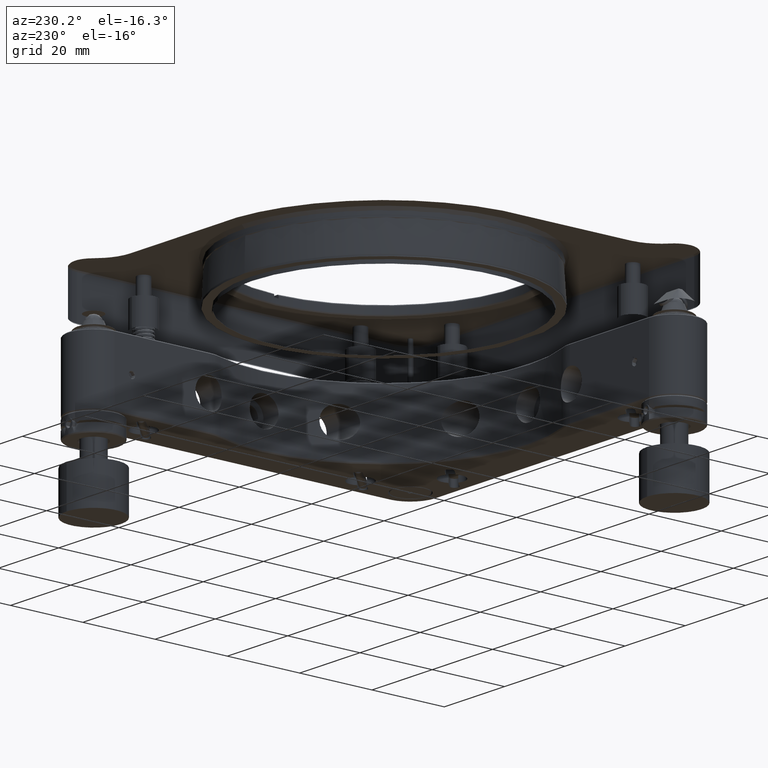
[diagram: clean part render]
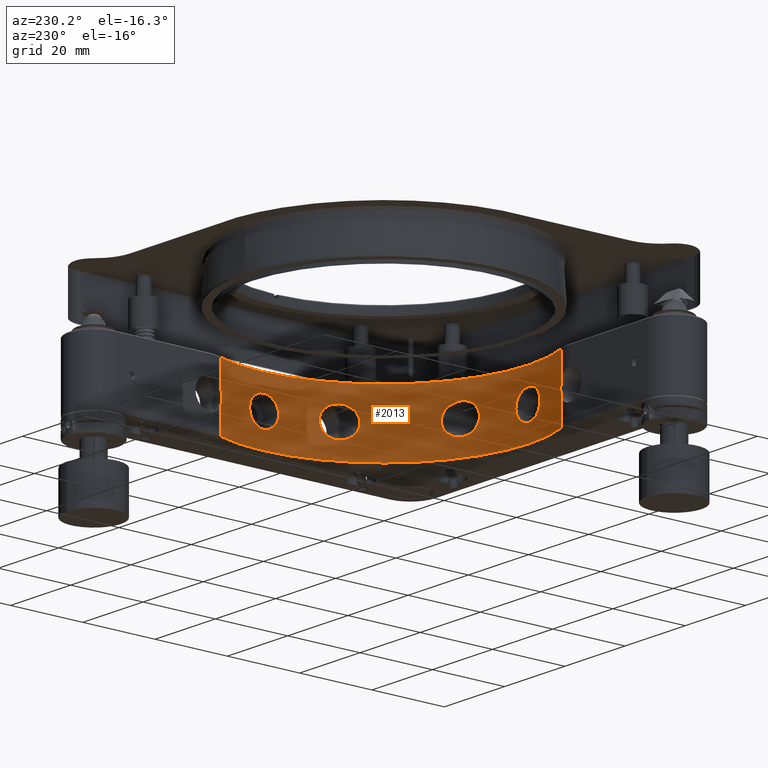
[diagram: same view with one face highlighted and labeled with its STEP entity id]
A machine part, auxiliary view. The second image highlights one B-rep face of the part: STEP entity #2013.
In plain terms, the highlighted cylindrical surface (partial cylindrical patch) has radius 40 mm, axis along (0, 0, 1).
Its self-contained STEP definition (entity closure, byte-faithful):
#19 = ORIENTED_EDGE ( 'NONE', *, *, #4626, .F. ) ;
#85 = CARTESIAN_POINT ( 'NONE',  ( 39.81973624974883563, -3.794555151462494891, -1.291970670427813772 ) ) ;
#108 = CARTESIAN_POINT ( 'NONE',  ( 34.12039577430473258, -20.87655359975871150, -2.159970961064502148 ) ) ;
#113 = CARTESIAN_POINT ( 'NONE',  ( 2.643779866513528365, -39.91297297625043683, -3.013327084978770554 ) ) ;
#258 = CIRCLE ( 'NONE', #5455, 40.00000000000000711 ) ;
#360 = CARTESIAN_POINT ( 'NONE',  ( 36.21088020550038067, -16.99549501406183438, -3.976095864953350212 ) ) ;
#395 = VERTEX_POINT ( 'NONE', #4796 ) ;
#461 = ORIENTED_EDGE ( 'NONE', *, *, #8875, .F. ) ;
#537 = LINE ( 'NONE', #4232, #7505 ) ;
#546 = EDGE_CURVE ( 'NONE', #13956, #12064, #10093, .T. ) ;
#575 = CARTESIAN_POINT ( 'NONE',  ( 37.43999999999999773, 14.07999999999999474, 2.074511990806470418 ) ) ;
#591 = CARTESIAN_POINT ( 'NONE',  ( 39.80211149448327745, 3.974235362776949554, -0.5233289608803896042 ) ) ;
#594 = CARTESIAN_POINT ( 'NONE',  ( 13.49563487544978990, -37.65458627938710379, -0.2027371142948291849 ) ) ;
#678 = CARTESIAN_POINT ( 'NONE',  ( 39.87349199812836531, -3.182091016693505026, 2.437654102006108658 ) ) ;
#697 = ORIENTED_EDGE ( 'NONE', *, *, #5062, .F. ) ;
#707 = DIRECTION ( 'NONE',  ( 0.000000000000000000, 0.000000000000000000, 1.000000000000000000 ) ) ;
#763 = CARTESIAN_POINT ( 'NONE',  ( 40.00000000000000000, 6.776263578034402713E-16, -3.999999999999994227 ) ) ;
#766 = CARTESIAN_POINT ( 'NONE',  ( 13.98237661210883331, -37.47676783253960764, 1.923929985853091607 ) ) ;
#809 = CARTESIAN_POINT ( 'NONE',  ( -3.999814172367130993, -39.79951616063990372, -0.2638454736327792149 ) ) ;
#846 = CARTESIAN_POINT ( 'NONE',  ( 39.99999992739900279, 0.2644192606446021387, 3.999999273989840010 ) ) ;
#868 = CARTESIAN_POINT ( 'NONE',  ( -13.56252369873147323, -37.63055476512877817, 0.7276294855478160351 ) ) ;
#890 = CARTESIAN_POINT ( 'NONE',  ( 2.438460131477095949, -39.92619803155862712, 3.181540281605568232 ) ) ;
#936 = CARTESIAN_POINT ( 'NONE',  ( 18.85775354456502839, -35.27680065668296550, 3.770728618600924786 ) ) ;
#981 = CARTESIAN_POINT ( 'NONE',  ( 37.51061960630837433, 13.89221604686188449, 1.764935028813254814 ) ) ;
#982 = CARTESIAN_POINT ( 'NONE',  ( 4.000183821660115768, -39.79947900949748885, -0.2581801784243560882 ) ) ;
#1064 = CARTESIAN_POINT ( 'NONE',  ( 36.97841389106583421, -15.25304808655003797, 3.319358962223633913 ) ) ;
#1068 = CARTESIAN_POINT ( 'NONE',  ( -1.041747499460663917, -39.98725425984980575, 3.870802633548977578 ) ) ;
#1100 = CARTESIAN_POINT ( 'NONE',  ( -14.07999999999999474, -37.43999999999999773, -8.750000000000010658 ) ) ;
#1144 = CARTESIAN_POINT ( 'NONE',  ( 34.30545935639871402, -20.57103197083863932, -2.575917583847042280 ) ) ;
#1177 = DIRECTION ( 'NONE',  ( 1.000000000000000000, 0.000000000000000000, 0.000000000000000000 ) ) ;
#1232 = CARTESIAN_POINT ( 'NONE',  ( 37.22513654046925780, -14.64020804572912660, 2.809525934883248866 ) ) ;
#1276 = CARTESIAN_POINT ( 'NONE',  ( 20.41183855940359848, -34.40064097931813336, -2.754414858204996985 ) ) ;
#1317 = CARTESIAN_POINT ( 'NONE',  ( 33.97964256284403461, -21.10445912458173012, 1.755126120527795708 ) ) ;
#1377 = CARTESIAN_POINT ( 'NONE',  ( 39.95037124450598753, -2.003800077714260386, -3.471753424719405068 ) ) ;
#1398 = CARTESIAN_POINT ( 'NONE',  ( 36.01233657734263716, -17.41233497111601025, 4.006874715714967117 ) ) ;
#1478 = CARTESIAN_POINT ( 'NONE',  ( 36.85713235445158631, -15.54374808690024778, -3.498757400069479218 ) ) ;
#1536 = B_SPLINE_CURVE_WITH_KNOTS ( 'NONE', 3,
 ( #1627, #15894, #4203, #2659, #14609, #2911, #1377, #8121, #7868, #13075, #6579, #6832, #2742, #85, #9487, #14694, #3172, #12470, #1960, #8377, #3339, #11110, #8538, #678, #5980, #10860, #13752, #12385, #5811, #7338, #7090, #5733, #15112, #846, #13836, #13590, #11193, #1882, #3083, #16399, #12303, #8461, #11028, #12551, #7007, #9825, #3427, #16067, #4375, #7169, #591, #16237, #16319, #4622, #9572, #5898, #4546, #2049, #9744, #15025, #14941, #1794, #3258, #7254, #14774, #763 ),
 .UNSPECIFIED., .T., .F.,
 ( 4, 2, 2, 2, 2, 2, 2, 2, 2, 2, 2, 2, 2, 2, 2, 2, 2, 2, 2, 2, 2, 2, 2, 2, 2, 2, 2, 2, 2, 2, 2, 2, 4 ),
 ( 0.000000000000000000, 0.0007819301302609063531, 0.001563860260521812489, 0.002345790390782718192, 0.003127720521043623678, 0.003909650651304529163, 0.004691580781565434649, 0.005473510911826341002, 0.006255441042087247355, 0.007037371172348154576, 0.007819301302609060061, 0.008601231432869968149, 0.009383161563130872768, 0.01016509169339177912, 0.01094702182365268547, 0.01172895195391359183, 0.01251088208417449818, 0.01329281221443540453, 0.01407474234469631262, 0.01485667247495721724, 0.01563860260521812359, 0.01642053273547902995, 0.01720246286573993630, 0.01798439299600084612, 0.01876632312626175247, 0.01954825325652266230, 0.02033018338678357212, 0.02111211351704448194, 0.02189404364730539176, 0.02267597377756630159, 0.02345790390782720794, 0.02423983403808811776, 0.02502176416834902412 ),
 .UNSPECIFIED. ) ;
#1627 = CARTESIAN_POINT ( 'NONE',  ( 40.00000000000000000, 6.776263578034402713E-16, -3.999999999999994227 ) ) ;
#1651 = DIRECTION ( 'NONE',  ( 0.000000000000000000, 0.000000000000000000, 1.000000000000000000 ) ) ;
#1704 = VERTEX_POINT ( 'NONE', #3170 ) ;
#1794 = CARTESIAN_POINT ( 'NONE',  ( 39.97989446881356912, 1.291031078043473723, -3.794993237898264482 ) ) ;
#1862 = CARTESIAN_POINT ( 'NONE',  ( 37.65296681763577169, 13.50015147527802206, -0.1855210066319131490 ) ) ;
#1882 = CARTESIAN_POINT ( 'NONE',  ( 39.96137064452024390, 1.774140766148539328, 3.594598306928420861 ) ) ;
#1960 = CARTESIAN_POINT ( 'NONE',  ( 39.80211150378906382, -3.974235271831175087, 0.5233298739115030962 ) ) ;
#1963 = CARTESIAN_POINT ( 'NONE',  ( 17.24905818533173374, -36.09082805755732437, -3.999999999999992450 ) ) ;
#2002 = VECTOR ( 'NONE', #11274, 1000.000000000000000 ) ;
#2013 = ADVANCED_FACE ( 'NONE', ( #11688, #15441, #13993, #5031, #4948 ), #2379, .F. ) ;
#2049 = CARTESIAN_POINT ( 'NONE',  ( 39.91297297625043683, 2.643779866513531918, -3.013327084978765669 ) ) ;
#2052 = CARTESIAN_POINT ( 'NONE',  ( 14.35184466892037847, -37.33699323100682221, -2.482276187145171065 ) ) ;
#2137 = CARTESIAN_POINT ( 'NONE',  ( 14.04742182256496363, -37.45258935069768569, -2.037714647975118254 ) ) ;
#2181 = CARTESIAN_POINT ( 'NONE',  ( 3.871449693952662585, -39.81224119563582065, 1.039795865176997625 ) ) ;
#2221 = CARTESIAN_POINT ( 'NONE',  ( 20.58470485839006514, -34.29726017907488256, -2.559833878587145950 ) ) ;
#2262 = CARTESIAN_POINT ( 'NONE',  ( 3.999814172686412039, -39.79951616060779429, 0.2638450218963653282 ) ) ;
#2348 = CARTESIAN_POINT ( 'NONE',  ( 37.41654366863880909, -14.14241435488483845, 2.178340931653804713 ) ) ;
#2379 = CYLINDRICAL_SURFACE ( 'NONE', #13750, 40.00000000000000000 ) ;
#2426 = CARTESIAN_POINT ( 'NONE',  ( 37.58222203377608395, -13.69631063092954548, -1.267712800667781581 ) ) ;
#2429 = CARTESIAN_POINT ( 'NONE',  ( -2.643775369483996052, -39.91297327704396025, 3.013331075884540411 ) ) ;
#2467 = CARTESIAN_POINT ( 'NONE',  ( -14.07999999999999652, -37.44000000000001194, -9.000000000000001776 ) ) ;
#2471 = CARTESIAN_POINT ( 'NONE',  ( 17.49999999999999645, -35.96873642484539602, -3.999999999999993339 ) ) ;
#2504 = CARTESIAN_POINT ( 'NONE',  ( 35.39166388443759104, -18.64144179281077385, 3.841604580884979026 ) ) ;
#2593 = CARTESIAN_POINT ( 'NONE',  ( 34.73849476164215844, -19.83499727423772896, -3.287814427035382181 ) ) ;
#2659 = CARTESIAN_POINT ( 'NONE',  ( 39.98740571346473160, -1.035755123510814668, -3.872360464062918339 ) ) ;
#2681 = CARTESIAN_POINT ( 'NONE',  ( 37.61054974276157026, -13.61798359609433540, -1.003942543709314794 ) ) ;
#2742 = CARTESIAN_POINT ( 'NONE',  ( 39.83825048478956177, -3.594974562944404095, -1.773131383321309595 ) ) ;
#2911 = CARTESIAN_POINT ( 'NONE',  ( 39.96137095332483824, -1.774133903318776850, -3.594601731679368140 ) ) ;
#2950 = ORIENTED_EDGE ( 'NONE', *, *, #7245, .F. ) ;
#3083 = CARTESIAN_POINT ( 'NONE',  ( 39.95037092861534944, 2.003806311519630512, 3.471749795448431097 ) ) ;
#3170 = CARTESIAN_POINT ( 'NONE',  ( 40.00000000000000000, 5.707760467655781881E-16, -3.999999999999994671 ) ) ;
#3172 = CARTESIAN_POINT ( 'NONE',  ( 39.79951616063988951, -3.999814172367130993, -0.2638454736327828232 ) ) ;
#3176 = CARTESIAN_POINT ( 'NONE',  ( 14.90793570074804819, -37.11867493712535548, -3.058202152720484346 ) ) ;
#3258 = CARTESIAN_POINT ( 'NONE',  ( 39.98725402923675887, 1.041756199916479719, -3.870800257904434716 ) ) ;
#3339 = CARTESIAN_POINT ( 'NONE',  ( 39.81952790991815760, -3.796749856375152277, 1.285842746189253205 ) ) ;
#3342 = CARTESIAN_POINT ( 'NONE',  ( 15.23371283999772352, -36.98638824822577220, 3.306318507508646753 ) ) ;
#3427 = CARTESIAN_POINT ( 'NONE',  ( 39.81224119563583486, 3.871449693952663029, 1.039795865177002510 ) ) ;
#3468 = CARTESIAN_POINT ( 'NONE',  ( -3.182091016693501029, -39.87349199812836531, 2.437654102006114876 ) ) ;
#3553 = CARTESIAN_POINT ( 'NONE',  ( -3.471377317092880332, -39.84934888910611051, 2.004345349963859491 ) ) ;
#3595 = CARTESIAN_POINT ( 'NONE',  ( 17.75094181466825916, -35.84664479213346766, -3.999999999999993339 ) ) ;
#3609 = EDGE_LOOP ( 'NONE', ( #12169, #10599, #7063, #2950, #461, #16206, #7801, #15765 ) ) ;
#3614 = CARTESIAN_POINT ( 'NONE',  ( -13.89221604686187383, -37.51061960630836722, -1.764935028813273021 ) ) ;
#3636 = CARTESIAN_POINT ( 'NONE',  ( 3.796750550622230769, -39.81952784284661107, -1.285840599828198982 ) ) ;
#3718 = CARTESIAN_POINT ( 'NONE',  ( 33.77954710445767716, -21.42296851654566581, -0.7929525635695652275 ) ) ;
#3722 = CARTESIAN_POINT ( 'NONE',  ( -2.438455081180893824, -39.92619834322272965, -3.181544186485814052 ) ) ;
#3761 = CARTESIAN_POINT ( 'NONE',  ( 21.08164959215999801, -33.99366944589916528, 1.785894821257615339 ) ) ;
#3799 = CARTESIAN_POINT ( 'NONE',  ( 34.97740767764297232, -19.41285634729969800, -3.548122421518220992 ) ) ;
#3803 = CARTESIAN_POINT ( 'NONE',  ( 37.64847625445835178, 13.51269539090910321, -0.3668327215669175412 ) ) ;
#3804 = CARTESIAN_POINT ( 'NONE',  ( -2.644129965915407166, -39.91293945288946077, -3.012732345288360758 ) ) ;
#3880 = CARTESIAN_POINT ( 'NONE',  ( 37.38796549957250193, -14.21785690777672961, 2.290315789270931823 ) ) ;
#3931 = CARTESIAN_POINT ( 'NONE',  ( 20.03674698116396868, -34.62045672107625904, -3.103307873976667963 ) ) ;
#3971 = EDGE_CURVE ( 'NONE', #1704, #1704, #1536, .T. ) ;
#3973 = CARTESIAN_POINT ( 'NONE',  ( 34.54894565705923526, -20.15973282190353899, 2.998728727787513204 ) ) ;
#4099 = CARTESIAN_POINT ( 'NONE',  ( 37.44000000000000483, 14.07999999999999474, -2.074511990806466422 ) ) ;
#4113 = EDGE_CURVE ( 'NONE', #10792, #4279, #15451, .T. ) ;
#4203 = CARTESIAN_POINT ( 'NONE',  ( 39.99738046160848626, -0.5243668357656054990, -3.974041225385773757 ) ) ;
#4232 = CARTESIAN_POINT ( 'NONE',  ( 37.43999999999999773, 14.07999999999999474, -9.000000000000001776 ) ) ;
#4279 = VERTEX_POINT ( 'NONE', #6312 ) ;
#4375 = CARTESIAN_POINT ( 'NONE',  ( 39.79951616060779429, 3.999814172686412039, 0.2638450218963711014 ) ) ;
#4397 = CARTESIAN_POINT ( 'NONE',  ( 36.54901978547012220, -16.25537066088559612, -3.810121432705223743 ) ) ;
#4462 = CARTESIAN_POINT ( 'NONE',  ( 15.78288450682069666, -36.75552985995759059, -3.621882069839563734 ) ) ;
#4546 = CARTESIAN_POINT ( 'NONE',  ( 39.88650360431810071, 3.016921279748337792, -2.639677649913072077 ) ) ;
#4617 = B_SPLINE_CURVE_WITH_KNOTS ( 'NONE', 3,
 ( #12770, #7297, #15413, #7558, #11579, #10212, #6108, #3722, #3804, #12512, #12850, #12682, #6358, #14050, #15240, #7382, #809, #6024, #15325, #16791, #9952, #14137, #3553, #3468, #11235, #2429, #16622, #15155, #10294, #4833, #1068, #5089, #8838, #16443, #10042, #4745, #8669, #13881, #11411, #890, #7471, #12596, #7640, #16535, #6280, #13964, #2181, #4921, #2262, #982, #6198, #10126, #3636, #16702, #5003, #16870, #11745, #113, #10713, #15579, #10546, #9004, #13277, #15927, #11995, #6523 ),
 .UNSPECIFIED., .T., .F.,
 ( 4, 2, 2, 2, 2, 2, 2, 2, 2, 2, 2, 2, 2, 2, 2, 2, 2, 2, 2, 2, 2, 2, 2, 2, 2, 2, 2, 2, 2, 2, 2, 2, 4 ),
 ( 0.000000000000000000, 0.0007819301302609080878, 0.001563860260521815742, 0.002345790390782723396, 0.003127720521043631050, 0.003909650651304538704, 0.004691580781565446792, 0.005473510911826354013, 0.006255441042087262100, 0.007037371172348167586, 0.007819301302609075674, 0.008601231432869982027, 0.009383161563130888380, 0.01016509169339179473, 0.01094702182365270109, 0.01172895195391360917, 0.01251088208417451553, 0.01329281221443542188, 0.01407474234469632997, 0.01485667247495723979, 0.01563860260521814788, 0.01642053273547905423, 0.01720246286573996405, 0.01798439299600087041, 0.01876632312626177676, 0.01954825325652269005, 0.02033018338678359641, 0.02111211351704450276, 0.02189404364730541258, 0.02267597377756631893, 0.02345790390782722876, 0.02423983403808813511, 0.02502176416834904146 ),
 .UNSPECIFIED. ) ;
#4622 = CARTESIAN_POINT ( 'NONE',  ( 39.83811450392386178, 3.596490670520106292, -1.770298180725097037 ) ) ;
#4626 = EDGE_CURVE ( 'NONE', #12221, #12221, #13367, .T. ) ;
#4734 = VECTOR ( 'NONE', #8799, 1000.000000000000000 ) ;
#4745 = CARTESIAN_POINT ( 'NONE',  ( 1.035763869968292505, -39.98740548342192369, 3.872358095332359085 ) ) ;
#4796 = CARTESIAN_POINT ( 'NONE',  ( 37.43999999999999773, 14.07999999999999297, 8.749999999999992895 ) ) ;
#4833 = CARTESIAN_POINT ( 'NONE',  ( -1.291022965742481432, -39.97989473421292672, 3.794996024812536284 ) ) ;
#4879 = CARTESIAN_POINT ( 'NONE',  ( 20.89125798846622217, -34.11139794200070696, -2.137176362634068294 ) ) ;
#4900 = CARTESIAN_POINT ( 'NONE',  ( -13.59932962182702632, -37.61729564506227774, -0.9041886321652651270 ) ) ;
#4921 = CARTESIAN_POINT ( 'NONE',  ( 3.974329331156516876, -39.80210268465472012, 0.5234544312109280506 ) ) ;
#4948 = FACE_BOUND ( 'NONE', #13724, .T. ) ;
#4997 = CARTESIAN_POINT ( 'NONE',  ( 33.74081722383623827, -21.48389417614121655, -0.3843105858032160316 ) ) ;
#5003 = CARTESIAN_POINT ( 'NONE',  ( 3.471379104489383138, -39.84934873170190173, -2.004342196768553741 ) ) ;
#5031 = FACE_BOUND ( 'NONE', #12000, .T. ) ;
#5045 = CARTESIAN_POINT ( 'NONE',  ( 17.39832424904881947, -36.01909807150074982, 4.006475940607523434 ) ) ;
#5062 = EDGE_CURVE ( 'NONE', #16146, #16146, #8250, .T. ) ;
#5084 = CARTESIAN_POINT ( 'NONE',  ( 35.72466890017123831, -18.00164574084966418, -3.999999999999991562 ) ) ;
#5089 = CARTESIAN_POINT ( 'NONE',  ( -0.5290458343630839444, -39.99732305542026012, 3.973469691046518815 ) ) ;
#5131 = CARTESIAN_POINT ( 'NONE',  ( 18.72558998606441349, -35.34714844206472151, -3.815661290487571300 ) ) ;
#5145 = VERTEX_POINT ( 'NONE', #8021 ) ;
#5168 = CARTESIAN_POINT ( 'NONE',  ( 33.80353208922972641, -21.38515101050709788, 0.9909908661878935598 ) ) ;
#5210 = CARTESIAN_POINT ( 'NONE',  ( 18.14113008220473588, -35.65069874446366072, 3.955933271353841540 ) ) ;
#5244 = CARTESIAN_POINT ( 'NONE',  ( 33.73375993490232361, -21.49496358232858029, -0.2439843592699819097 ) ) ;
#5330 = CARTESIAN_POINT ( 'NONE',  ( 33.76373409527672464, -21.44786040255315740, -0.6584114784883083882 ) ) ;
#5355 = CARTESIAN_POINT ( 'NONE',  ( 37.43999999999999773, 14.07999999999999297, -9.000000000000001776 ) ) ;
#5455 = AXIS2_PLACEMENT_3D ( 'NONE', #16010, #707, #12163 ) ;
#5464 = CARTESIAN_POINT ( 'NONE',  ( 37.51060971686368362, 13.89224234379428502, -1.764978381423028875 ) ) ;
#5669 = CARTESIAN_POINT ( 'NONE',  ( 36.43973683116851703, -16.49909923920943911, -3.880987152154006914 ) ) ;
#5731 = CARTESIAN_POINT ( 'NONE',  ( 35.96873642484539602, -17.49999999999999645, -3.999999999999993339 ) ) ;
#5733 = CARTESIAN_POINT ( 'NONE',  ( 39.99732305542026012, -0.5290458343630938254, 3.973469691046516150 ) ) ;
#5737 = CARTESIAN_POINT ( 'NONE',  ( 17.00035470604656496, -36.20858398071924711, -3.976586675342641097 ) ) ;
#5811 = CARTESIAN_POINT ( 'NONE',  ( 39.96131812540961192, -1.775324459537202859, 3.594016999095358322 ) ) ;
#5815 = CARTESIAN_POINT ( 'NONE',  ( 14.12343853441931074, -37.42402756860685287, 2.161321848127597978 ) ) ;
#5898 = CARTESIAN_POINT ( 'NONE',  ( 39.87349177946280321, 3.182093735418721092, -2.437650505679890944 ) ) ;
#5902 = CARTESIAN_POINT ( 'NONE',  ( 13.70340416733485611, -37.57963995898582965, -1.288705830220908455 ) ) ;
#5980 = CARTESIAN_POINT ( 'NONE',  ( 39.88650385326580761, -3.016918027015051962, 2.639681419310543120 ) ) ;
#6024 = CARTESIAN_POINT ( 'NONE',  ( -4.000183821979381271, -39.79947900946544337, 0.2581806301795342984 ) ) ;
#6065 = CARTESIAN_POINT ( 'NONE',  ( 13.62401709950764861, -37.60836670154260730, -1.026458071714603459 ) ) ;
#6108 = CARTESIAN_POINT ( 'NONE',  ( -2.003800077714261274, -39.95037124450599464, -3.471753424719406400 ) ) ;
#6198 = CARTESIAN_POINT ( 'NONE',  ( 3.974235362776949554, -39.80211149448329877, -0.5233289608803926019 ) ) ;
#6276 = CARTESIAN_POINT ( 'NONE',  ( 37.59116245298213244, -13.67146969020387282, 1.190989944935157530 ) ) ;
#6280 = CARTESIAN_POINT ( 'NONE',  ( 3.594975934481518642, -39.83825036017658761, 1.773128536391650023 ) ) ;
#6312 = CARTESIAN_POINT ( 'NONE',  ( -14.07999999999999119, -37.44000000000000483, 2.074511990806490846 ) ) ;
#6356 = CARTESIAN_POINT ( 'NONE',  ( 37.63055476512877817, 13.56252369873148744, -0.7276294855478041557 ) ) ;
#6358 = CARTESIAN_POINT ( 'NONE',  ( -3.594974562944405871, -39.83825048478955466, -1.773131383321307375 ) ) ;
#6438 = CARTESIAN_POINT ( 'NONE',  ( 33.83920371131630134, -21.32870888630544925, -1.189458390800701260 ) ) ;
#6519 = CARTESIAN_POINT ( 'NONE',  ( 34.23577909857435486, -20.68672043405605265, 2.431828914191798141 ) ) ;
#6523 = CARTESIAN_POINT ( 'NONE',  ( 1.490777987167568597E-15, -40.00000000000000000, -3.999999999999994671 ) ) ;
#6579 = CARTESIAN_POINT ( 'NONE',  ( 39.87379489700726509, -3.178365584561842372, -2.442771823416745924 ) ) ;
#6600 = CARTESIAN_POINT ( 'NONE',  ( 34.03740018826586322, -21.01126999590583821, -1.934944208327609605 ) ) ;
#6832 = CARTESIAN_POINT ( 'NONE',  ( 39.84940548615502109, -3.470793810892091269, -2.005675021701936789 ) ) ;
#6858 = CARTESIAN_POINT ( 'NONE',  ( 37.43999999999999773, 14.07999999999999474, 2.074511990806470418 ) ) ;
#6943 = CARTESIAN_POINT ( 'NONE',  ( 35.96873642484539602, -17.49999999999999645, -3.999999999999993339 ) ) ;
#7007 = CARTESIAN_POINT ( 'NONE',  ( 39.83825036017658761, 3.594975934481514646, 1.773128536391658239 ) ) ;
#7032 = DIRECTION ( 'NONE',  ( 1.000000000000000000, 0.000000000000000000, 0.000000000000000000 ) ) ;
#7044 = VERTEX_POINT ( 'NONE', #13369 ) ;
#7063 = ORIENTED_EDGE ( 'NONE', *, *, #14716, .F. ) ;
#7071 = CARTESIAN_POINT ( 'NONE',  ( 37.64859957645591493, 13.51235185805598249, 0.3635768544831192717 ) ) ;
#7090 = CARTESIAN_POINT ( 'NONE',  ( 39.98725425984980575, -1.041747499460673243, 3.870802633548970917 ) ) ;
#7093 = CARTESIAN_POINT ( 'NONE',  ( 14.52420026753195081, -37.27050016479843464, -2.686263890723278536 ) ) ;
#7169 = CARTESIAN_POINT ( 'NONE',  ( 39.79947900949749595, 4.000183821660117545, -0.2581801784243523135 ) ) ;
#7245 = EDGE_CURVE ( 'NONE', #7647, #5145, #537, .T. ) ;
#7251 = VERTEX_POINT ( 'NONE', #6858 ) ;
#7254 = CARTESIAN_POINT ( 'NONE',  ( 39.99732292007506373, 0.5290557683395636923, -3.973468335175716959 ) ) ;
#7257 = CARTESIAN_POINT ( 'NONE',  ( 15.68147749479099140, -36.79877968248905518, 3.572222762193551393 ) ) ;
#7297 = CARTESIAN_POINT ( 'NONE',  ( -0.2644088597951868569, -39.99999999999999289, -3.999999999999994671 ) ) ;
#7338 = CARTESIAN_POINT ( 'NONE',  ( 39.97989473421292672, -1.291022965742487649, 3.794996024812533175 ) ) ;
#7340 = CARTESIAN_POINT ( 'NONE',  ( 13.53977798531945709, -37.63879339935400736, 0.6271149066583883158 ) ) ;
#7382 = CARTESIAN_POINT ( 'NONE',  ( -3.974329243818753632, -39.80210269361010234, -0.5234553298841235769 ) ) ;
#7423 = CARTESIAN_POINT ( 'NONE',  ( 17.14460611040788152, -36.14053612821834349, 3.992178603606768572 ) ) ;
#7471 = CARTESIAN_POINT ( 'NONE',  ( 2.644134377352501897, -39.91293915794445724, 3.012728432829248071 ) ) ;
#7487 = CARTESIAN_POINT ( 'NONE',  ( 17.49999999999999645, -35.96873642484539602, -3.999999999999993339 ) ) ;
#7505 = VECTOR ( 'NONE', #1651, 1000.000000000000000 ) ;
#7531 = CIRCLE ( 'NONE', #10805, 40.00000000000000000 ) ;
#7553 = CARTESIAN_POINT ( 'NONE',  ( 37.55833950282958256, -13.76178048428730527, 1.449549841367077541 ) ) ;
#7558 = CARTESIAN_POINT ( 'NONE',  ( -1.035755123510814668, -39.98740571346473160, -3.872360464062919672 ) ) ;
#7636 = CARTESIAN_POINT ( 'NONE',  ( 37.50557639497371554, -13.90482208357044946, -1.774780073860916962 ) ) ;
#7640 = CARTESIAN_POINT ( 'NONE',  ( 3.178368317566783841, -39.87379467747833672, 2.442768222562586633 ) ) ;
#7647 = VERTEX_POINT ( 'NONE', #15652 ) ;
#7681 = CARTESIAN_POINT ( 'NONE',  ( 21.14025744816766661, -33.95722720875544809, 1.663379319573768722 ) ) ;
#7717 = CARTESIAN_POINT ( 'NONE',  ( 36.47527538264399993, -16.42025355648586782, 3.860090343130361035 ) ) ;
#7801 = ORIENTED_EDGE ( 'NONE', *, *, #14058, .F. ) ;
#7803 = CARTESIAN_POINT ( 'NONE',  ( 37.49361139903076889, -13.93674895143593240, 1.822666161827972697 ) ) ;
#7868 = CARTESIAN_POINT ( 'NONE',  ( 39.91293945288946077, -2.644129965915406721, -3.012732345288362534 ) ) ;
#8021 = CARTESIAN_POINT ( 'NONE',  ( 37.44000000000000483, 14.07999999999999474, -2.074511990806466422 ) ) ;
#8121 = CARTESIAN_POINT ( 'NONE',  ( 39.92619834322271544, -2.438455081180892492, -3.181544186485814496 ) ) ;
#8231 = CARTESIAN_POINT ( 'NONE',  ( 0.000000000000000000, 0.000000000000000000, -8.750000000000012434 ) ) ;
#8250 = B_SPLINE_CURVE_WITH_KNOTS ( 'NONE', 3,
 ( #13673, #1963, #5737, #11112, #10944, #4462, #14863, #9663, #3176, #7093, #2052, #2137, #12388, #5902, #6065, #12306, #594, #13755, #7340, #16322, #11196, #766, #5815, #12554, #9828, #11279, #3342, #7257, #16402, #9911, #15367, #7423, #5045, #11454, #5210, #11702, #936, #11533, #8793, #10416, #10086, #14256, #16909, #8880, #16748, #3761, #7681, #14178, #11619, #8963, #9042, #13925, #16830, #15456, #15285, #14092, #4879, #2221, #1276, #3931, #15620, #16661, #10251, #5131, #16579, #14008, #3595, #2471 ),
 .UNSPECIFIED., .T., .F.,
 ( 4, 2, 2, 2, 2, 2, 2, 2, 2, 2, 2, 2, 2, 2, 2, 2, 2, 2, 2, 2, 2, 2, 2, 2, 2, 2, 2, 2, 2, 2, 2, 2, 2, 4 ),
 ( 0.000000000000000000, 0.0008259373620780255517, 0.001651874724156051103, 0.002477812086234076547, 0.003303749448312102207, 0.004129686810390127867, 0.004955624172468153094, 0.005781561534546178320, 0.006607498896624204414, 0.007433436258702229640, 0.008259373620780255734, 0.009085310982858280093, 0.009911248344936306187, 0.01073718570701433228, 0.01156312306909236184, 0.01238906043117039141, 0.01321499779324842271, 0.01404093515532645574, 0.01486687251740448530, 0.01569280987948251660, 0.01651874724156054963, 0.01734468460363858267, 0.01775765328467759224, 0.01817062196571660529, 0.01899655932779462444, 0.01982249668987264013, 0.02064843405195065582, 0.02147437141402867150, 0.02230030877610669066, 0.02312624613818470634, 0.02395218350026272203, 0.02477812086234073771, 0.02560405822441875340, 0.02642999558649676908 ),
 .UNSPECIFIED. ) ;
#8377 = CARTESIAN_POINT ( 'NONE',  ( 39.81216401875146715, -3.872237376499351846, 1.036435165766129263 ) ) ;
#8461 = CARTESIAN_POINT ( 'NONE',  ( 39.88680090334124628, 3.012851229066622061, 2.643994456686098449 ) ) ;
#8538 = CARTESIAN_POINT ( 'NONE',  ( 39.84934888910609629, -3.471377317092883441, 2.004345349963851497 ) ) ;
#8566 = CARTESIAN_POINT ( 'NONE',  ( -13.50015147527800430, -37.65296681763577880, 0.1855210066319188944 ) ) ;
#8669 = CARTESIAN_POINT ( 'NONE',  ( 1.289855262002122416, -39.97993237425395563, 3.795390078683376522 ) ) ;
#8793 = CARTESIAN_POINT ( 'NONE',  ( 19.53178948871648757, -34.90795760438342654, 3.454539118071655146 ) ) ;
#8799 = DIRECTION ( 'NONE',  ( -0.000000000000000000, -0.000000000000000000, -1.000000000000000000 ) ) ;
#8814 = CARTESIAN_POINT ( 'NONE',  ( -14.07999999999999474, -37.44000000000000483, -2.074511990806489070 ) ) ;
#8834 = CARTESIAN_POINT ( 'NONE',  ( 34.66219759804567246, -19.96468239288200053, 3.160382505807914466 ) ) ;
#8838 = CARTESIAN_POINT ( 'NONE',  ( -0.2643972947637658888, -40.00000007259800583, 4.000000725980020100 ) ) ;
#8875 = EDGE_CURVE ( 'NONE', #12064, #7647, #7531, .T. ) ;
#8880 = CARTESIAN_POINT ( 'NONE',  ( 20.88722103118776374, -34.11350541786101331, 2.131575444473116310 ) ) ;
#8919 = CARTESIAN_POINT ( 'NONE',  ( 37.46930928213275536, -14.00201720511324943, 1.944907952957691588 ) ) ;
#8951 = CARTESIAN_POINT ( 'NONE',  ( 0.000000000000000000, 0.000000000000000000, -9.000000000000001776 ) ) ;
#8963 = CARTESIAN_POINT ( 'NONE',  ( 21.47897920634291680, -33.74399581330995090, 0.4925274602777307553 ) ) ;
#9001 = CARTESIAN_POINT ( 'NONE',  ( 34.05848396229440311, -20.97733641321769227, 1.994269405581902577 ) ) ;
#9004 = CARTESIAN_POINT ( 'NONE',  ( 1.291031078043466174, -39.97989446881359044, -3.794993237898266703 ) ) ;
#9042 = CARTESIAN_POINT ( 'NONE',  ( 21.50403600742033561, -33.72797748096742509, 0.2103933553034330883 ) ) ;
#9081 = CARTESIAN_POINT ( 'NONE',  ( 37.65016718069035306, -13.50795924123125680, 0.3741201944050991934 ) ) ;
#9170 = CARTESIAN_POINT ( 'NONE',  ( 36.68995709027316110, -15.93478866546136885, 3.690022129695361919 ) ) ;
#9487 = CARTESIAN_POINT ( 'NONE',  ( 39.81224123932162229, -3.871449247118952108, -1.039797647448363671 ) ) ;
#9572 = CARTESIAN_POINT ( 'NONE',  ( 39.84934873170190173, 3.471379104489383138, -2.004342196768550188 ) ) ;
#9663 = CARTESIAN_POINT ( 'NONE',  ( 15.11723723913955020, -37.03410554643190977, -3.223319965353208083 ) ) ;
#9744 = CARTESIAN_POINT ( 'NONE',  ( 39.92598091157753970, 2.441931765589314907, -3.178805668280004770 ) ) ;
#9825 = CARTESIAN_POINT ( 'NONE',  ( 39.81973618210262345, 3.794555852449335021, 1.291968520789172459 ) ) ;
#9828 = CARTESIAN_POINT ( 'NONE',  ( 14.62545106889875335, -37.23092479941778521, 2.794307684941880865 ) ) ;
#9911 = CARTESIAN_POINT ( 'NONE',  ( 16.40003775044506185, -36.48435091761927396, 3.854247027514543955 ) ) ;
#9952 = CARTESIAN_POINT ( 'NONE',  ( -3.796749856375150056, -39.81952790991814339, 1.285842746189257202 ) ) ;
#10017 = CARTESIAN_POINT ( 'NONE',  ( -13.51235185805596828, -37.64859957645591493, -0.3635768544831209370 ) ) ;
#10041 = CARTESIAN_POINT ( 'NONE',  ( 37.61729564506229195, 13.59932962182704586, 0.9041886321652597980 ) ) ;
#10042 = CARTESIAN_POINT ( 'NONE',  ( 0.5243766759706952607, -39.99738032911191965, 3.974039898455432152 ) ) ;
#10086 = CARTESIAN_POINT ( 'NONE',  ( 20.14144750008922813, -34.55961036005319187, 3.014739335513816787 ) ) ;
#10093 = LINE ( 'NONE', #15293, #4734 ) ;
#10126 = CARTESIAN_POINT ( 'NONE',  ( 3.872237815152373308, -39.81216397586207023, -1.036433414622936589 ) ) ;
#10208 = CARTESIAN_POINT ( 'NONE',  ( 35.26734775044301529, -18.87541667917725619, 3.764306433810417740 ) ) ;
#10212 = CARTESIAN_POINT ( 'NONE',  ( -1.774133903318776628, -39.96137095332480982, -3.594601731679365919 ) ) ;
#10223 = ORIENTED_EDGE ( 'NONE', *, *, #16600, .F. ) ;
#10251 = CARTESIAN_POINT ( 'NONE',  ( 19.18694179482388051, -35.09885878306579343, -3.635322444920547014 ) ) ;
#10293 = CARTESIAN_POINT ( 'NONE',  ( 37.63065558003796696, 13.56224404074720624, 0.7263634341254486815 ) ) ;
#10294 = CARTESIAN_POINT ( 'NONE',  ( -1.775324459537196198, -39.96131812540961192, 3.594016999095362319 ) ) ;
#10373 = CARTESIAN_POINT ( 'NONE',  ( 35.01979422873596803, -19.33083506577591493, 3.565083018796443515 ) ) ;
#10416 = CARTESIAN_POINT ( 'NONE',  ( 19.94455912915243090, -34.67377778501656849, 3.175868339340210511 ) ) ;
#10454 = CARTESIAN_POINT ( 'NONE',  ( 33.74044066599436320, -21.48455559499173262, 0.4469653026043867161 ) ) ;
#10546 = CARTESIAN_POINT ( 'NONE',  ( 1.775331434849412471, -39.96131781208398337, -3.594013524821961347 ) ) ;
#10599 = ORIENTED_EDGE ( 'NONE', *, *, #16311, .F. ) ;
#10665 = B_SPLINE_CURVE_WITH_KNOTS ( 'NONE', 3,
 ( #4099, #5464, #16047, #16701, #6356, #3803, #1862, #16534, #7071, #10293, #10041, #11410, #981, #575 ),
 .UNSPECIFIED., .F., .F.,
 ( 4, 2, 2, 2, 2, 2, 4 ),
 ( 0.000000000000000000, 0.001091242056846793412, 0.001636863085270191852, 0.002182484113693590293, 0.002728105142116988083, 0.003273726170540386740, 0.004364968227387183188 ),
 .UNSPECIFIED. ) ;
#10703 = ORIENTED_EDGE ( 'NONE', *, *, #3971, .F. ) ;
#10713 = CARTESIAN_POINT ( 'NONE',  ( 2.441931765589307357, -39.92598091157754681, -3.178805668280011432 ) ) ;
#10792 = VERTEX_POINT ( 'NONE', #12852 ) ;
#10795 = CARTESIAN_POINT ( 'NONE',  ( 36.75773124453232299, -15.77774116774008739, -3.619385588528361453 ) ) ;
#10805 = AXIS2_PLACEMENT_3D ( 'NONE', #8231, #15052, #7032 ) ;
#10860 = CARTESIAN_POINT ( 'NONE',  ( 39.91297327704396025, -2.643775369483999604, 3.013331075884536858 ) ) ;
#10881 = CARTESIAN_POINT ( 'NONE',  ( 37.12263348519983452, -14.89808539442169888, -3.049992572204343055 ) ) ;
#10944 = CARTESIAN_POINT ( 'NONE',  ( 16.26222061900661942, -36.54597924780004092, -3.812403119913917671 ) ) ;
#11028 = CARTESIAN_POINT ( 'NONE',  ( 39.87379467747834383, 3.178368317566779400, 2.442768222562592406 ) ) ;
#11110 = CARTESIAN_POINT ( 'NONE',  ( 39.83811462986556506, -3.596489285167726813, 1.770301065210656111 ) ) ;
#11112 = CARTESIAN_POINT ( 'NONE',  ( 16.50760913805645913, -36.43586769332319619, -3.883046147474094045 ) ) ;
#11135 = CARTESIAN_POINT ( 'NONE',  ( -13.51269539090908545, -37.64847625445835888, 0.3668327215669255903 ) ) ;
#11193 = CARTESIAN_POINT ( 'NONE',  ( 39.97993237425396984, 1.289855262002114644, 3.795390078683382296 ) ) ;
#11196 = CARTESIAN_POINT ( 'NONE',  ( 13.75275037014438517, -37.56164054129447294, 1.425938673663970757 ) ) ;
#11235 = CARTESIAN_POINT ( 'NONE',  ( -3.016918027015047965, -39.88650385326580761, 2.639681419310549337 ) ) ;
#11274 = DIRECTION ( 'NONE',  ( -0.000000000000000000, -0.000000000000000000, -1.000000000000000000 ) ) ;
#11279 = CARTESIAN_POINT ( 'NONE',  ( 15.02203848626843374, -37.07268455488115677, 3.151332056747707000 ) ) ;
#11387 = CARTESIAN_POINT ( 'NONE',  ( -13.74846701938576743, -37.56315613561528011, 1.434876550547064866 ) ) ;
#11410 = CARTESIAN_POINT ( 'NONE',  ( 37.56412879638597246, 13.74580004994326465, 1.427280162324810808 ) ) ;
#11411 = CARTESIAN_POINT ( 'NONE',  ( 2.003806311519633621, -39.95037092861532813, 3.471749795448427989 ) ) ;
#11454 = CARTESIAN_POINT ( 'NONE',  ( 17.89673302843028679, -35.77406965203316958, 3.988081032921842350 ) ) ;
#11491 = CARTESIAN_POINT ( 'NONE',  ( 34.40800621977027163, -20.39942748641895776, -2.767454470326123683 ) ) ;
#11533 = CARTESIAN_POINT ( 'NONE',  ( 19.31451452753941567, -35.02880331790355939, 3.573433367542109274 ) ) ;
#11575 = CARTESIAN_POINT ( 'NONE',  ( 33.72677782163007976, -21.50591855223605009, 0.1722385544855036532 ) ) ;
#11579 = CARTESIAN_POINT ( 'NONE',  ( -1.289847037712711586, -39.97993264370816746, -3.795392909252107039 ) ) ;
#11619 = CARTESIAN_POINT ( 'NONE',  ( 21.37485506141940661, -33.81004839243068005, 1.029736411238001859 ) ) ;
#11688 = FACE_OUTER_BOUND ( 'NONE', #3609, .T. ) ;
#11702 = CARTESIAN_POINT ( 'NONE',  ( 18.62081044086144033, -35.40251883910919872, 3.847627812739704556 ) ) ;
#11740 = CARTESIAN_POINT ( 'NONE',  ( 34.89698875423173519, -19.55138514943735828, 3.443035847833576302 ) ) ;
#11745 = CARTESIAN_POINT ( 'NONE',  ( 3.016921279748334239, -39.88650360431810071, -2.639677649913073409 ) ) ;
#11817 = CARTESIAN_POINT ( 'NONE',  ( 36.36386501918982361, -16.66565402452839706, 3.920020737760366636 ) ) ;
#11995 = CARTESIAN_POINT ( 'NONE',  ( 0.2644088597951898545, -40.00000000000000711, -3.999999999999994671 ) ) ;
#12000 = EDGE_LOOP ( 'NONE', ( #19 ) ) ;
#12064 = VERTEX_POINT ( 'NONE', #1100 ) ;
#12069 = CARTESIAN_POINT ( 'NONE',  ( 37.03895610484505596, -15.10536463134666008, -3.214645601499784622 ) ) ;
#12163 = DIRECTION ( 'NONE',  ( 1.000000000000000000, 0.000000000000000000, -4.336808689942017120E-17 ) ) ;
#12169 = ORIENTED_EDGE ( 'NONE', *, *, #16813, .T. ) ;
#12221 = VERTEX_POINT ( 'NONE', #5731 ) ;
#12245 = CARTESIAN_POINT ( 'NONE',  ( 37.27486481809442864, -14.51300513638534717, -2.673999998123234523 ) ) ;
#12303 = CARTESIAN_POINT ( 'NONE',  ( 39.91293915794445013, 2.644134377352496568, 3.012728432829251624 ) ) ;
#12306 = CARTESIAN_POINT ( 'NONE',  ( 13.51947222831579687, -37.64607494219251294, -0.4819318175301456342 ) ) ;
#12385 = CARTESIAN_POINT ( 'NONE',  ( 39.95010072405924006, -2.009088079138278360, 3.468631078117417665 ) ) ;
#12388 = CARTESIAN_POINT ( 'NONE',  ( 13.91431242852449301, -37.50206040821946374, -1.793808036892957203 ) ) ;
#12470 = CARTESIAN_POINT ( 'NONE',  ( 39.79947900946543626, -4.000183821979383048, 0.2581806301795289138 ) ) ;
#12512 = CARTESIAN_POINT ( 'NONE',  ( -3.012847982661660318, -39.88680115125855963, -2.643998202414302501 ) ) ;
#12551 = CARTESIAN_POINT ( 'NONE',  ( 39.84940532577937233, 3.470795632928873165, 2.005671814060253411 ) ) ;
#12554 = CARTESIAN_POINT ( 'NONE',  ( 14.44351565726462105, -37.30166498897493454, 2.594298156467685246 ) ) ;
#12576 = CARTESIAN_POINT ( 'NONE',  ( -13.89224234379427436, -37.51060971686369783, 1.764978381423050857 ) ) ;
#12596 = CARTESIAN_POINT ( 'NONE',  ( 3.012851229066627390, -39.88680090334126049, 2.643994456686094896 ) ) ;
#12682 = CARTESIAN_POINT ( 'NONE',  ( -3.470793810892091269, -39.84940548615500688, -2.005675021701933680 ) ) ;
#12766 = CARTESIAN_POINT ( 'NONE',  ( 33.89537804494739248, -21.23961924345896080, -1.445086152255486756 ) ) ;
#12770 = CARTESIAN_POINT ( 'NONE',  ( 1.490777987167568597E-15, -40.00000000000000000, -3.999999999999994671 ) ) ;
#12845 = CARTESIAN_POINT ( 'NONE',  ( 37.45657987476725026, -14.03677357175322626, -2.019744321036530010 ) ) ;
#12850 = CARTESIAN_POINT ( 'NONE',  ( -3.178365584561844148, -39.87379489700725088, -2.442771823416743704 ) ) ;
#12852 = CARTESIAN_POINT ( 'NONE',  ( -14.07999999999999829, -37.44000000000000483, 8.749999999999996447 ) ) ;
#12932 = CARTESIAN_POINT ( 'NONE',  ( 36.79114240465355579, -15.69937611467673122, 3.581157696200229168 ) ) ;
#13016 = CARTESIAN_POINT ( 'NONE',  ( 37.65501619264105670, -13.49443615452825718, -0.1783637277649794406 ) ) ;
#13075 = CARTESIAN_POINT ( 'NONE',  ( 39.88680115125859516, -3.012847982661659429, -2.643998202414304277 ) ) ;
#13099 = CARTESIAN_POINT ( 'NONE',  ( 35.47697903731161517, -18.48410121685885343, -3.908930405937415475 ) ) ;
#13277 = CARTESIAN_POINT ( 'NONE',  ( 1.041756199916479497, -39.98725402923677308, -3.870800257904431607 ) ) ;
#13367 = B_SPLINE_CURVE_WITH_KNOTS ( 'NONE', 3,
 ( #16866, #5084, #13099, #3799, #2593, #11491, #1144, #108, #6600, #12766, #6438, #3718, #5330, #4997, #5244, #11575, #10454, #5168, #16787, #1317, #9001, #6519, #15574, #3973, #8834, #11740, #10373, #10208, #2504, #16698, #14046, #1398, #15755, #11817, #7717, #9170, #12932, #1064, #14386, #1232, #15409, #3880, #2348, #8919, #7803, #7553, #6276, #14132, #9081, #13016, #15667, #2681, #2426, #7636, #12845, #16004, #12245, #10881, #12069, #1478, #10795, #4397, #5669, #360, #15920, #6943 ),
 .UNSPECIFIED., .T., .F.,
 ( 4, 2, 2, 2, 2, 2, 2, 2, 2, 2, 2, 2, 2, 2, 2, 2, 2, 2, 2, 2, 2, 2, 2, 2, 2, 2, 2, 2, 2, 2, 2, 2, 4 ),
 ( 0.000000000000000000, 0.001649744674835136420, 0.003299489349670271972, 0.004124361687087839748, 0.004949234024505406657, 0.005774106361922974433, 0.006186542530631755285, 0.006598978699340536137, 0.007423851036758098709, 0.008248723374175662149, 0.009073595711593223853, 0.009898468049010785558, 0.01072334038642834900, 0.01154821272384591070, 0.01237308506126347241, 0.01319795739868103585, 0.01402282973609859755, 0.01484770207351615925, 0.01567257441093372269, 0.01649744674835128266, 0.01732231908576883916, 0.01773475525447762088, 0.01814719142318640260, 0.01897206376060396604, 0.01979693609802152601, 0.02062180843543908945, 0.02144668077285665289, 0.02227155311027421633, 0.02309642544769177630, 0.02392129778510933974, 0.02474617012252690318, 0.02557104245994446315, 0.02639591479736202312 ),
 .UNSPECIFIED. ) ;
#13369 = CARTESIAN_POINT ( 'NONE',  ( 1.518099256186053843E-15, -40.00000000000000000, -3.999999999999994671 ) ) ;
#13590 = CARTESIAN_POINT ( 'NONE',  ( 39.98740548342193080, 1.035763869968284734, 3.872358095332361749 ) ) ;
#13660 = EDGE_LOOP ( 'NONE', ( #10223 ) ) ;
#13673 = CARTESIAN_POINT ( 'NONE',  ( 17.49999999999999645, -35.96873642484539602, -3.999999999999993339 ) ) ;
#13724 = EDGE_LOOP ( 'NONE', ( #10703 ) ) ;
#13750 = AXIS2_PLACEMENT_3D ( 'NONE', #8951, #16896, #1177 ) ;
#13752 = CARTESIAN_POINT ( 'NONE',  ( 39.92598122010099360, -2.441926777026492967, 3.178809538405618973 ) ) ;
#13755 = CARTESIAN_POINT ( 'NONE',  ( 13.50569656697122412, -37.65097859025931371, 0.3486867836916405228 ) ) ;
#13777 = CARTESIAN_POINT ( 'NONE',  ( -13.49985123931959663, -37.65307446333795838, -0.1789305928271560653 ) ) ;
#13836 = CARTESIAN_POINT ( 'NONE',  ( 39.99738032911193386, 0.5243766759706871561, 3.974039898455433928 ) ) ;
#13881 = CARTESIAN_POINT ( 'NONE',  ( 1.774140766148543102, -39.96137064452020837, 3.594598306928417308 ) ) ;
#13925 = CARTESIAN_POINT ( 'NONE',  ( 21.49486562504877796, -33.73382251281604738, -0.3429553184864149173 ) ) ;
#13943 = CARTESIAN_POINT ( 'NONE',  ( -13.56224404074719381, -37.63065558003796696, -0.7263634341254540105 ) ) ;
#13956 = VERTEX_POINT ( 'NONE', #14018 ) ;
#13964 = CARTESIAN_POINT ( 'NONE',  ( 3.794555852449339017, -39.81973618210264476, 1.291968520789165797 ) ) ;
#13993 = FACE_BOUND ( 'NONE', #13660, .T. ) ;
#14008 = CARTESIAN_POINT ( 'NONE',  ( 18.00207211030254584, -35.72114426044707614, -3.976084596445493169 ) ) ;
#14018 = CARTESIAN_POINT ( 'NONE',  ( -14.07999999999999474, -37.44000000000000483, -2.074511990806489070 ) ) ;
#14046 = CARTESIAN_POINT ( 'NONE',  ( 35.76601643893502569, -17.91284072937591532, 3.986513850081732091 ) ) ;
#14050 = CARTESIAN_POINT ( 'NONE',  ( -3.794555151462496667, -39.81973624974884274, -1.291970670427809997 ) ) ;
#14058 = EDGE_CURVE ( 'NONE', #4279, #13956, #16291, .T. ) ;
#14092 = CARTESIAN_POINT ( 'NONE',  ( 21.02749021292802922, -34.02737064978645520, -1.905038820746356665 ) ) ;
#14132 = CARTESIAN_POINT ( 'NONE',  ( 37.63719869973483867, -13.54421840097592522, 0.6541355538317966678 ) ) ;
#14137 = CARTESIAN_POINT ( 'NONE',  ( -3.596489285167722372, -39.83811462986555085, 1.770301065210661662 ) ) ;
#14178 = CARTESIAN_POINT ( 'NONE',  ( 21.29637138399068874, -33.85970502828602235, 1.288714287078445153 ) ) ;
#14256 = CARTESIAN_POINT ( 'NONE',  ( 20.50514264257233776, -34.34506807163596420, 2.652360430751305120 ) ) ;
#14386 = CARTESIAN_POINT ( 'NONE',  ( 37.06515904310480636, -15.04062722057018497, 3.165964550069008787 ) ) ;
#14571 = DIRECTION ( 'NONE',  ( 0.000000000000000000, 0.000000000000000000, 1.000000000000000000 ) ) ;
#14609 = CARTESIAN_POINT ( 'NONE',  ( 39.97993264370816746, -1.289847037712712474, -3.795392909252107039 ) ) ;
#14694 = CARTESIAN_POINT ( 'NONE',  ( 39.80210269361010944, -3.974329243818756296, -0.5234553298841270186 ) ) ;
#14716 = EDGE_CURVE ( 'NONE', #5145, #7251, #10665, .T. ) ;
#14774 = CARTESIAN_POINT ( 'NONE',  ( 40.00000000000000711, 0.2644088597951890773, -3.999999999999994227 ) ) ;
#14863 = CARTESIAN_POINT ( 'NONE',  ( 15.55371577340248734, -36.85292065778366322, -3.504187164362889906 ) ) ;
#14941 = CARTESIAN_POINT ( 'NONE',  ( 39.96131781208399048, 1.775331434849415357, -3.594013524821963124 ) ) ;
#15025 = CARTESIAN_POINT ( 'NONE',  ( 39.95010040641249560, 2.009094327553880621, -3.468627424136824899 ) ) ;
#15052 = DIRECTION ( 'NONE',  ( 0.000000000000000000, 0.000000000000000000, 1.000000000000000000 ) ) ;
#15112 = CARTESIAN_POINT ( 'NONE',  ( 40.00000007259800583, -0.2643972947637742710, 4.000000725980018323 ) ) ;
#15155 = CARTESIAN_POINT ( 'NONE',  ( -2.009088079138271254, -39.95010072405924006, 3.468631078117423439 ) ) ;
#15213 = EDGE_LOOP ( 'NONE', ( #697 ) ) ;
#15240 = CARTESIAN_POINT ( 'NONE',  ( -3.871449247118956549, -39.81224123932160808, -1.039797647448360562 ) ) ;
#15285 = CARTESIAN_POINT ( 'NONE',  ( 21.25080024109098886, -33.88835769266458442, -1.415576794909204850 ) ) ;
#15293 = CARTESIAN_POINT ( 'NONE',  ( -14.07999999999999474, -37.43999999999999773, -9.000000000000001776 ) ) ;
#15304 = CARTESIAN_POINT ( 'NONE',  ( -13.74580004994326110, -37.56412879638597957, -1.427280162324822133 ) ) ;
#15325 = CARTESIAN_POINT ( 'NONE',  ( -3.974235271831174199, -39.80211150378908513, 0.5233298739115095355 ) ) ;
#15367 = CARTESIAN_POINT ( 'NONE',  ( 16.64526612420897322, -36.37321797656006339, 3.915766185745818362 ) ) ;
#15389 = CARTESIAN_POINT ( 'NONE',  ( -14.07999999999999119, -37.44000000000000483, 2.074511990806490846 ) ) ;
#15409 = CARTESIAN_POINT ( 'NONE',  ( 37.29559663194226005, -14.45918908018048121, 2.612567266034858893 ) ) ;
#15413 = CARTESIAN_POINT ( 'NONE',  ( -0.5243668357656048329, -39.99738046160847915, -3.974041225385773757 ) ) ;
#15441 = FACE_BOUND ( 'NONE', #15213, .T. ) ;
#15451 = LINE ( 'NONE', #2467, #2002 ) ;
#15456 = CARTESIAN_POINT ( 'NONE',  ( 21.33856628859422955, -33.83298546881822944, -1.158620547221476782 ) ) ;
#15574 = CARTESIAN_POINT ( 'NONE',  ( 34.33445937068910325, -20.52289875206393788, 2.632230195393133076 ) ) ;
#15579 = CARTESIAN_POINT ( 'NONE',  ( 2.009094327553877957, -39.95010040641248139, -3.468627424136826232 ) ) ;
#15620 = CARTESIAN_POINT ( 'NONE',  ( 19.83667819940080790, -34.73565029556269224, -3.256156525492143849 ) ) ;
#15652 = CARTESIAN_POINT ( 'NONE',  ( 37.43999999999999773, 14.07999999999999652, -8.750000000000012434 ) ) ;
#15667 = CARTESIAN_POINT ( 'NONE',  ( 37.64726349891399337, -13.51615626646774793, -0.4549077907202724314 ) ) ;
#15755 = CARTESIAN_POINT ( 'NONE',  ( 36.13272831172135113, -17.16102118029309764, 3.993468311010753613 ) ) ;
#15765 = ORIENTED_EDGE ( 'NONE', *, *, #4113, .F. ) ;
#15859 = LINE ( 'NONE', #5355, #16355 ) ;
#15894 = CARTESIAN_POINT ( 'NONE',  ( 39.99999999999999289, -0.2644088597951877451, -3.999999999999994227 ) ) ;
#15920 = CARTESIAN_POINT ( 'NONE',  ( 36.09077018718247842, -17.24917712957516258, -3.999999999999994227 ) ) ;
#15927 = CARTESIAN_POINT ( 'NONE',  ( 0.5290557683395660238, -39.99732292007507084, -3.973468335175715183 ) ) ;
#16004 = CARTESIAN_POINT ( 'NONE',  ( 37.34133641820787375, -14.34053634707259128, -2.468014149371278165 ) ) ;
#16010 = CARTESIAN_POINT ( 'NONE',  ( 0.000000000000000000, 0.000000000000000000, 8.749999999999994671 ) ) ;
#16047 = CARTESIAN_POINT ( 'NONE',  ( 37.56315613561526590, 13.74846701938577631, -1.434876550547045770 ) ) ;
#16067 = CARTESIAN_POINT ( 'NONE',  ( 39.80210268465472723, 3.974329331156515099, 0.5234544312109351560 ) ) ;
#16146 = VERTEX_POINT ( 'NONE', #7487 ) ;
#16206 = ORIENTED_EDGE ( 'NONE', *, *, #546, .F. ) ;
#16237 = CARTESIAN_POINT ( 'NONE',  ( 39.81216397586207734, 3.872237815152372864, -1.036433414622933036 ) ) ;
#16291 = B_SPLINE_CURVE_WITH_KNOTS ( 'NONE', 3,
 ( #15389, #12576, #11387, #16343, #868, #11135, #8566, #13777, #10017, #13943, #4900, #15304, #3614, #8814 ),
 .UNSPECIFIED., .F., .F.,
 ( 4, 2, 2, 2, 2, 2, 4 ),
 ( 0.000000000000000000, 0.001091242056846807506, 0.001636863085270212018, 0.002182484113693616747, 0.002728105142117021476, 0.003273726170540426205, 0.004364968227387233494 ),
 .UNSPECIFIED. ) ;
#16311 = EDGE_CURVE ( 'NONE', #7251, #395, #15859, .T. ) ;
#16319 = CARTESIAN_POINT ( 'NONE',  ( 39.81952784284662528, 3.796750550622234321, -1.285840599828193875 ) ) ;
#16322 = CARTESIAN_POINT ( 'NONE',  ( 13.66391836354635281, -37.59390497680890064, 1.166665843408760006 ) ) ;
#16343 = CARTESIAN_POINT ( 'NONE',  ( -13.60029168471162109, -37.61694866883411947, 0.9085662665194923493 ) ) ;
#16355 = VECTOR ( 'NONE', #14571, 1000.000000000000000 ) ;
#16399 = CARTESIAN_POINT ( 'NONE',  ( 39.92619803155860581, 2.438460131477090620, 3.181540281605571341 ) ) ;
#16402 = CARTESIAN_POINT ( 'NONE',  ( 15.91911177574444736, -36.69674345725193376, 3.683195558473752129 ) ) ;
#16443 = CARTESIAN_POINT ( 'NONE',  ( 0.2644192606446097438, -39.99999992739900279, 3.999999273989839121 ) ) ;
#16534 = CARTESIAN_POINT ( 'NONE',  ( 37.65307446333797969, 13.49985123931961439, 0.1789305928271578972 ) ) ;
#16535 = CARTESIAN_POINT ( 'NONE',  ( 3.470795632928876717, -39.84940532577937944, 2.005671814060247193 ) ) ;
#16579 = CARTESIAN_POINT ( 'NONE',  ( 18.48867534167420246, -35.47173003463985452, -3.883792758477228713 ) ) ;
#16600 = EDGE_CURVE ( 'NONE', #7044, #7044, #4617, .T. ) ;
#16622 = CARTESIAN_POINT ( 'NONE',  ( -2.441926777026487638, -39.92598122010099360, 3.178809538405625634 ) ) ;
#16661 = CARTESIAN_POINT ( 'NONE',  ( 19.41263618087076992, -34.97440149525586151, -3.521994202960046838 ) ) ;
#16698 = CARTESIAN_POINT ( 'NONE',  ( 35.64063222541999920, -18.16090744418103853, 3.952722665768196197 ) ) ;
#16701 = CARTESIAN_POINT ( 'NONE',  ( 37.61694866883411237, 13.60029168471162819, -0.9085662665194785825 ) ) ;
#16702 = CARTESIAN_POINT ( 'NONE',  ( 3.596490670520103183, -39.83811450392385467, -1.770298180725105253 ) ) ;
#16748 = CARTESIAN_POINT ( 'NONE',  ( 20.95531631426063512, -34.07169250408557559, 2.019510654098901181 ) ) ;
#16787 = CARTESIAN_POINT ( 'NONE',  ( 33.85283378515138253, -21.30727454074540717, 1.255887674567781609 ) ) ;
#16791 = CARTESIAN_POINT ( 'NONE',  ( -3.872237376499350070, -39.81216401875146005, 1.036435165766133926 ) ) ;
#16813 = EDGE_CURVE ( 'NONE', #10792, #395, #258, .T. ) ;
#16830 = CARTESIAN_POINT ( 'NONE',  ( 21.46177517455433659, -33.75496294388246099, -0.6175193848461311141 ) ) ;
#16866 = CARTESIAN_POINT ( 'NONE',  ( 35.96873642484539602, -17.49999999999999645, -3.999999999999993339 ) ) ;
#16870 = CARTESIAN_POINT ( 'NONE',  ( 3.182093735418716207, -39.87349177946280321, -2.437650505679894497 ) ) ;
#16896 = DIRECTION ( 'NONE',  ( 0.000000000000000000, 0.000000000000000000, 1.000000000000000000 ) ) ;
#16909 = CARTESIAN_POINT ( 'NONE',  ( 20.66902379644699295, -34.24646656959524904, 2.454548621632597794 ) ) ;